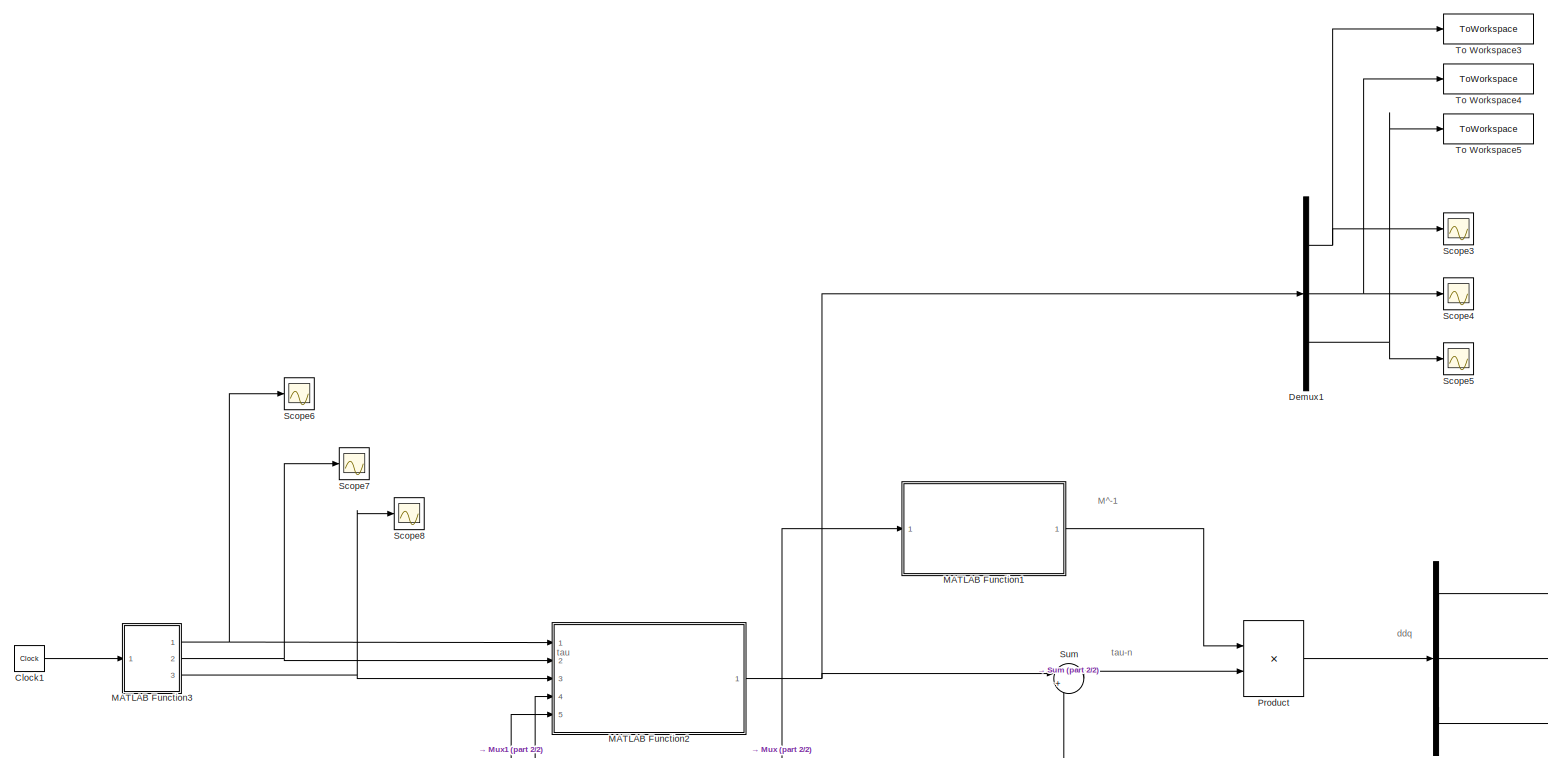
[diagram: root canvas - part 1/2, full width, middle band]
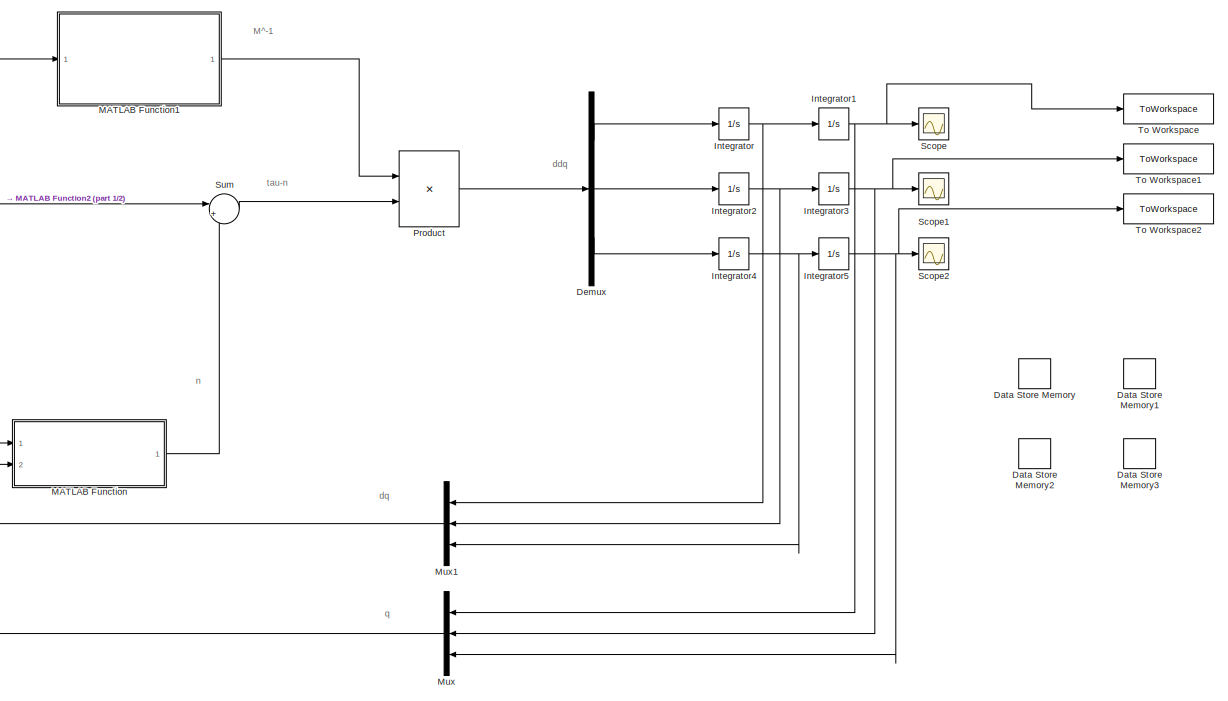
[diagram: root canvas - part 2/2, bottom right region]
MODEL slx_aa73523b1beb
KIND model
CONFIG AbsTol = auto
CONFIG EnableMultiTasking = off
CONFIG FixedStep = Ts
CONFIG MaxStep = auto
CONFIG MinStep = auto
CONFIG RelTol = 1e-3
CONFIG SampleTimeConstraint = Unconstrained
CONFIG SolverName = ode4
CONFIG StartTime = 0.0
CONFIG StopTime = T
BLOCK [Clock] Clock1
BLOCK [DataStoreMemory] Data Store Memory
  DataStoreName = g0
  ReadBeforeWriteMsg = warning
  ShowAdditionalParam = off
  WriteAfterReadMsg = warning
  WriteAfterWriteMsg = warning
BLOCK [DataStoreMemory] Data Store Memory1
  DataStoreName = k
  ReadBeforeWriteMsg = warning
  ShowAdditionalParam = off
  WriteAfterReadMsg = warning
  WriteAfterWriteMsg = warning
BLOCK [DataStoreMemory] Data Store Memory2
  DataStoreName = Kd
  ReadBeforeWriteMsg = warning
  ShowAdditionalParam = off
  WriteAfterReadMsg = warning
  WriteAfterWriteMsg = warning
BLOCK [DataStoreMemory] Data Store Memory3
  DataStoreName = Kp
  ReadBeforeWriteMsg = warning
  ShowAdditionalParam = off
  WriteAfterReadMsg = warning
  WriteAfterWriteMsg = warning
BLOCK [Demux] Demux
  Outputs = 3
  Ports = [1, 3]
BLOCK [Demux] Demux1
  Outputs = 3
  Ports = [1, 3]
BLOCK [Integrator] Integrator
  InitialCondition = dq0_1
  Ports = [1, 1]
BLOCK [Integrator] Integrator1
  InitialCondition = q0_1
  Ports = [1, 1]
BLOCK [Integrator] Integrator2
  InitialCondition = dq0_2
  Ports = [1, 1]
BLOCK [Integrator] Integrator3
  InitialCondition = q0_2
  Ports = [1, 1]
BLOCK [Integrator] Integrator4
  InitialCondition = dq0_3
  Ports = [1, 1]
BLOCK [Integrator] Integrator5
  InitialCondition = q0_3
  Ports = [1, 1]
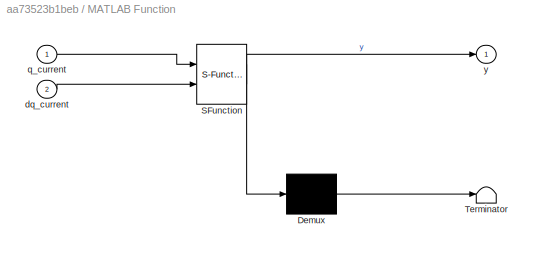
BLOCK [SubSystem] MATLAB Function
  ErrorFcn = Stateflow.Translate.translate
  PermitHierarchicalResolution = ExplicitOnly
  Ports = [2, 1]
  RequestExecContextInheritance = off
  SFBlockType = MATLAB Function
  TreatAsAtomicUnit = on
BLOCK [Demux] MATLAB Function/ Demux 
  Outputs = 1
  Ports = [1, 1]
BLOCK [S-Function] MATLAB Function/ SFunction 
  EnableBusSupport = on
  FunctionName = sf_sfun
  PortCounts = [2 2]
  Ports = [2, 2]
  SFcnIsStateOwnerBlock = off
  SFunctionDeploymentMode = off
  Tag = Stateflow S-Function 1
BLOCK [Terminator] MATLAB Function/ Terminator 
BLOCK [Inport] MATLAB Function/dq_current
  Port = 2
BLOCK [Inport] MATLAB Function/q_current
BLOCK [Outport] MATLAB Function/y
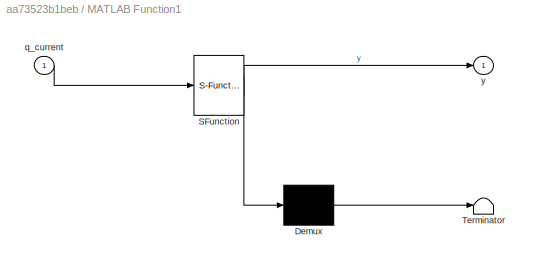
BLOCK [SubSystem] MATLAB Function1
  ErrorFcn = Stateflow.Translate.translate
  PermitHierarchicalResolution = ExplicitOnly
  Ports = [1, 1]
  RequestExecContextInheritance = off
  SFBlockType = MATLAB Function
  TreatAsAtomicUnit = on
BLOCK [Demux] MATLAB Function1/ Demux 
  Outputs = 1
  Ports = [1, 1]
BLOCK [S-Function] MATLAB Function1/ SFunction 
  EnableBusSupport = on
  FunctionName = sf_sfun
  PortCounts = [1 2]
  Ports = [1, 2]
  SFcnIsStateOwnerBlock = off
  SFunctionDeploymentMode = off
  Tag = Stateflow S-Function 3
BLOCK [Terminator] MATLAB Function1/ Terminator 
BLOCK [Inport] MATLAB Function1/q_current
BLOCK [Outport] MATLAB Function1/y
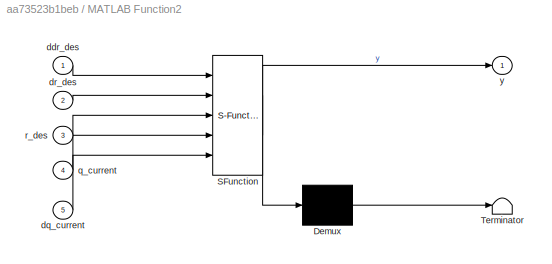
BLOCK [SubSystem] MATLAB Function2
  ErrorFcn = Stateflow.Translate.translate
  PermitHierarchicalResolution = ExplicitOnly
  Ports = [5, 1]
  RequestExecContextInheritance = off
  SFBlockType = MATLAB Function
  TreatAsAtomicUnit = on
BLOCK [Demux] MATLAB Function2/ Demux 
  Outputs = 1
  Ports = [1, 1]
BLOCK [S-Function] MATLAB Function2/ SFunction 
  EnableBusSupport = on
  FunctionName = sf_sfun
  PortCounts = [5 2]
  Ports = [5, 2]
  SFcnIsStateOwnerBlock = off
  SFunctionDeploymentMode = off
  Tag = Stateflow S-Function 4
BLOCK [Terminator] MATLAB Function2/ Terminator 
BLOCK [Inport] MATLAB Function2/ddr_des
BLOCK [Inport] MATLAB Function2/dq_current
  Port = 5
BLOCK [Inport] MATLAB Function2/dr_des
  Port = 2
BLOCK [Inport] MATLAB Function2/q_current
  Port = 4
BLOCK [Inport] MATLAB Function2/r_des
  Port = 3
BLOCK [Outport] MATLAB Function2/y
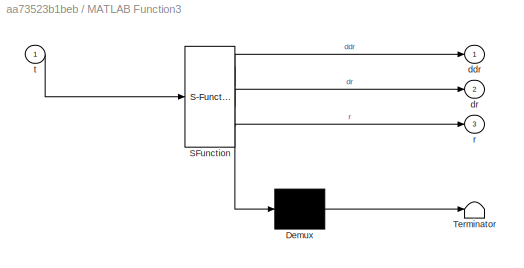
BLOCK [SubSystem] MATLAB Function3
  ErrorFcn = Stateflow.Translate.translate
  PermitHierarchicalResolution = ExplicitOnly
  Ports = [1, 3]
  RequestExecContextInheritance = off
  SFBlockType = MATLAB Function
  TreatAsAtomicUnit = on
BLOCK [Demux] MATLAB Function3/ Demux 
  Outputs = 1
  Ports = [1, 1]
BLOCK [S-Function] MATLAB Function3/ SFunction 
  EnableBusSupport = on
  FunctionName = sf_sfun
  PortCounts = [1 4]
  Ports = [1, 4]
  SFcnIsStateOwnerBlock = off
  SFunctionDeploymentMode = off
  Tag = Stateflow S-Function 2
BLOCK [Terminator] MATLAB Function3/ Terminator 
BLOCK [Outport] MATLAB Function3/ddr
BLOCK [Outport] MATLAB Function3/dr
  Port = 2
BLOCK [Outport] MATLAB Function3/r
  Port = 3
BLOCK [Inport] MATLAB Function3/t
BLOCK [Mux] Mux
  DisplayOption = bar
  Inputs = 3
  Ports = [3, 1]
BLOCK [Mux] Mux1
  DisplayOption = bar
  Inputs = 3
  Ports = [3, 1]
BLOCK [Product] Product
  Multiplication = Matrix(*)
  Ports = [2, 1]
BLOCK [Scope] Scope
  Floating = off
  NumInputPorts = 1
  Ports = [1]
  ScopeSpecificationString = Simulink.scopes.TimeScopeBlockCfg('CurrentConfiguration', extmgr.ConfigurationSet(extmgr.Configuration('Core','General UI',true),extmgr.Configuration('Core','Source UI',true),extmgr.Configuration('Sources','WiredSimulink',true),extmgr.Configuration('Visuals','Time Domain',true,'SerializedDisplays',{struct('MinYLimReal','-2.37453','MaxYLimReal','0.98775','YLabelReal','','MinYLimMag','0.00000','MaxY...<+1383ch>
BLOCK [Scope] Scope1
  Floating = off
  NumInputPorts = 1
  Ports = [1]
  ScopeSpecificationString = Simulink.scopes.TimeScopeBlockCfg('CurrentConfiguration', extmgr.ConfigurationSet(extmgr.Configuration('Core','General UI',true),extmgr.Configuration('Core','Source UI',true),extmgr.Configuration('Sources','WiredSimulink',true,'DataLoggingVariableName','ScopeData1'),extmgr.Configuration('Visuals','Time Domain',true,'SerializedDisplays',{struct('MinYLimReal','0.00699','MaxYLimReal','2.83128','YLabe...<+1401ch>
BLOCK [Scope] Scope2
  Floating = off
  NumInputPorts = 1
  Ports = [1]
  ScopeSpecificationString = Simulink.scopes.TimeScopeBlockCfg('CurrentConfiguration', extmgr.ConfigurationSet(extmgr.Configuration('Core','General UI',true),extmgr.Configuration('Core','Source UI',true),extmgr.Configuration('Sources','WiredSimulink',true,'DataLoggingVariableName','ScopeData2'),extmgr.Configuration('Visuals','Time Domain',true,'SerializedDisplays',{struct('MinYLimReal','0.4236','MaxYLimReal','0.6236','YLabelR...<+1360ch>
BLOCK [Scope] Scope3
  Floating = off
  NumInputPorts = 1
  Ports = [1]
  ScopeSpecificationString = Simulink.scopes.TimeScopeBlockCfg('CurrentConfiguration', extmgr.ConfigurationSet(extmgr.Configuration('Core','General UI',true),extmgr.Configuration('Core','Source UI',true),extmgr.Configuration('Sources','WiredSimulink',true,'DataLoggingVariableName','ScopeData1'),extmgr.Configuration('Visuals','Time Domain',true,'SerializedDisplays',{struct('MinYLimReal','-28530760574863017621786026544167131660...<+2191ch>
BLOCK [Scope] Scope4
  Floating = off
  NumInputPorts = 1
  Ports = [1]
  ScopeSpecificationString = Simulink.scopes.TimeScopeBlockCfg('CurrentConfiguration', extmgr.ConfigurationSet(extmgr.Configuration('Core','General UI',true),extmgr.Configuration('Core','Source UI',true),extmgr.Configuration('Sources','WiredSimulink',true,'DataLoggingVariableName','ScopeData2'),extmgr.Configuration('Visuals','Time Domain',true,'SerializedDisplays',{struct('MinYLimReal','-5522.08815','MaxYLimReal','2073.23301'...<+1419ch>
BLOCK [Scope] Scope5
  Floating = off
  NumInputPorts = 1
  Ports = [1]
  ScopeSpecificationString = Simulink.scopes.TimeScopeBlockCfg('CurrentConfiguration', extmgr.ConfigurationSet(extmgr.Configuration('Core','General UI',true),extmgr.Configuration('Core','Source UI',true),extmgr.Configuration('Sources','WiredSimulink',true,'DataLoggingVariableName','ScopeData3'),extmgr.Configuration('Visuals','Time Domain',true,'SerializedDisplays',{struct('MinYLimReal','-42764417739397075978404447610402734436...<+2930ch>
BLOCK [Scope] Scope6
  Floating = off
  NumInputPorts = 1
  Ports = [1]
  ScopeSpecificationString = Simulink.scopes.TimeScopeBlockCfg('CurrentConfiguration', extmgr.ConfigurationSet(extmgr.Configuration('Core','General UI',true),extmgr.Configuration('Core','Source UI',true),extmgr.Configuration('Sources','WiredSimulink',true,'DataLoggingVariableName','ScopeData2'),extmgr.Configuration('Visuals','Time Domain',true,'SerializedDisplays',{struct('MinYLimReal','-5.92176','MaxYLimReal','5.92176','YLab...<+1442ch>
BLOCK [Scope] Scope7
  Floating = off
  NumInputPorts = 1
  Ports = [1]
  ScopeSpecificationString = Simulink.scopes.TimeScopeBlockCfg('CurrentConfiguration', extmgr.ConfigurationSet(extmgr.Configuration('Core','General UI',true),extmgr.Configuration('Core','Source UI',true),extmgr.Configuration('Sources','WiredSimulink',true,'DataLoggingVariableName','ScopeData3'),extmgr.Configuration('Visuals','Time Domain',true,'SerializedDisplays',{struct('MinYLimReal','-0.84105','MaxYLimReal','0.47145','YLab...<+1440ch>
BLOCK [Scope] Scope8
  Floating = off
  NumInputPorts = 1
  Ports = [1]
  ScopeSpecificationString = Simulink.scopes.TimeScopeBlockCfg('CurrentConfiguration', extmgr.ConfigurationSet(extmgr.Configuration('Core','General UI',true),extmgr.Configuration('Core','Source UI',true),extmgr.Configuration('Sources','WiredSimulink',true,'DataLoggingVariableName','ScopeData4'),extmgr.Configuration('Visuals','Time Domain',true,'SerializedDisplays',{struct('MinYLimReal','0.3125','MaxYLimReal','2.1875','YLabelR...<+1426ch>
BLOCK [Sum] Sum
  Inputs = |+-
  Ports = [2, 1]
BLOCK [ToWorkspace] To Workspace
  FixptAsFi = on
  MaxDataPoints = inf
  Ports = [1]
  SampleTime = -1
  SaveFormat = Structure With Time
  VariableName = q1
BLOCK [ToWorkspace] To Workspace1
  FixptAsFi = on
  MaxDataPoints = inf
  Ports = [1]
  SampleTime = -1
  SaveFormat = Structure With Time
  VariableName = q2
BLOCK [ToWorkspace] To Workspace2
  FixptAsFi = on
  MaxDataPoints = inf
  Ports = [1]
  SampleTime = -1
  SaveFormat = Structure With Time
  VariableName = q3
BLOCK [ToWorkspace] To Workspace3
  FixptAsFi = on
  MaxDataPoints = inf
  Ports = [1]
  SampleTime = -1
  SaveFormat = Structure With Time
  VariableName = tau1
BLOCK [ToWorkspace] To Workspace4
  FixptAsFi = on
  MaxDataPoints = inf
  Ports = [1]
  SampleTime = -1
  SaveFormat = Structure With Time
  VariableName = tau2
BLOCK [ToWorkspace] To Workspace5
  FixptAsFi = on
  MaxDataPoints = inf
  Ports = [1]
  SampleTime = -1
  SaveFormat = Structure With Time
  VariableName = tau3
ANNOTATION (root): M^-1
ANNOTATION (root): ddq
ANNOTATION (root): dq
ANNOTATION (root): n
ANNOTATION (root): q
ANNOTATION (root): tau
ANNOTATION (root): tau-n
LINE Clock1:1 -> MATLAB Function3:1
NET Demux1:1 -> Scope3:1, To Workspace3:1
NET Demux1:2 -> Scope4:1, To Workspace4:1
NET Demux1:3 -> Scope5:1, To Workspace5:1
LINE Demux:1 -> Integrator:1
LINE Demux:2 -> Integrator2:1
LINE Demux:3 -> Integrator4:1
NET Integrator1:1 -> Mux:1, Scope:1, To Workspace:1
NET Integrator2:1 -> Integrator3:1, Mux1:2
NET Integrator3:1 -> Mux:2, Scope1:1, To Workspace1:1
NET Integrator4:1 -> Integrator5:1, Mux1:3
NET Integrator5:1 -> Mux:3, Scope2:1, To Workspace2:1
NET Integrator:1 -> Integrator1:1, Mux1:1
LINE MATLAB Function1:1 -> Product:1
NET MATLAB Function2:1 -> Demux1:1, Sum:1
NET MATLAB Function3:1 -> MATLAB Function2:1, Scope6:1
NET MATLAB Function3:2 -> MATLAB Function2:2, Scope7:1
NET MATLAB Function3:3 -> MATLAB Function2:3, Scope8:1
LINE MATLAB Function:1 -> Sum:2
NET Mux1:1 -> MATLAB Function2:5, MATLAB Function:2
NET Mux:1 -> MATLAB Function1:1, MATLAB Function2:4, MATLAB Function:1
LINE Product:1 -> Demux:1
LINE Sum:1 -> Product:2
note: NET lines group one-source signal fan-out (src -> all destinations, sorted); 1:1 wires keep LINE
CHART MATLAB Function states=1 transitions=1
  STATE_LABEL 'eML_blk_kernel()'
  STATE_LABEL 'SCRIPT:\nfunction y = evaluate_n(q_current, dq_current)\n\nq1 = q_current(1);\nq2 = q_current(2);\nq3 = q_current(3);\ndq1 = dq_current(1);\ndq2 = dq_current(2);\ndq3 = dq_current(3);\n\n% global g0;\nL = 1;\ndc1 = 1/2 * L;\ndc2 = 1/2 * L;\ndc3 = 1/2 * L;\nm1 = 10;\nm2 = 10;\nm3 = 10;\nI1 = 1/12 * m1 * L^2;\nI2 = 1/12 * m2 * L^2;\nI3 = 1/12 * m3 * L^2;\ng0=0;\n\nn=zeros(3,1);\nn(1)=g0*m3*(L*cos(q1 + q2) + L*cos(q1) + dc3...<+762ch>'
CHART MATLAB Function3 states=1 transitions=1
  STATE_LABEL 'eML_blk_kernel()'
  STATE_LABEL 'SCRIPT:\nfunction [ddr, dr, r] = evaluate_trajectory(t)\n\nT=5;\n\n%% LINEAR TRAJECTORY\n% \n% tau_t = t/T;\n% s = -2*tau_t^3 + 3*tau_t^2;\n% ds = (6*t)/T^2 - (6*t^2)/T^3;\n% dds = 6/T^2 - (12*t)/T^3;\n% start = [1.3660; 2.3660];\n% finish = [2.5; 0];\n% r = start + s*(finish-start);\n% dr = (finish-start)*ds;\n% ddr = (finish-start)*dds;\n\n%% CIRCULAR TRAJECTORY\n\nh = 0;\nif t > T\n    h = 1\nend\ntau_t = t/T - h;\nce...<+381ch>'
CHART MATLAB Function1 states=1 transitions=1
  STATE_LABEL 'eML_blk_kernel()'
  STATE_LABEL 'SCRIPT:\nfunction y = evaluate_inv_M(q_current)\n\nq1 = q_current(1);\nq2 = q_current(2);\nq3 = q_current(3);\n\nL = 1;\ndc1 = 1/2 * L;\ndc2 = 1/2 * L;\ndc3 = 1/2 * L;\nm1 = 10;\nm2 = 10;\nm3 = 10;\nI1 = 1/12 * m1 * L^2;\nI2 = 1/12 * m2 * L^2;\nI3 = 1/12 * m3 * L^2;\n\nM=zeros(3,3);\nM(1,1)=I1 + I2 + I3 + L^2*m2 + 2*L^2*m3 + 2*cos(q2)*(m3*L^2 + dc2*m2*L) + dc1^2*m1 + dc2^2*m2 + dc3^2*m3 + 2*L*dc3*m3*cos(q2 + q3) + 2...<+409ch>'
CHART MATLAB Function2 states=1 transitions=1
  STATE_LABEL 'eML_blk_kernel()'
  STATE_LABEL 'SCRIPT:\nfunction y = compute_tau(ddr_des, dr_des, r_des, q_current, dq_current)\n\n\ng0 = 0;\nKp = diag([400,400]);\nKd = diag([40,40]);\nk = 2;\n\n\nq1 = q_current(1);\nq2 = q_current(2);\nq3 = q_current(3);\n\ndq1 = dq_current(1);\ndq2 = dq_current(2);\ndq3 = dq_current(3);\ndq=[dq1;dq2;dq3];\n\nM=zeros(3,3);\nM(1,1)=10*cos(q2 + q3) + 30*cos(q2) + 10*cos(q3) + 40;\nM(1,2)=5*cos(q2 + q3) + 15*cos(q2) + 10*cos(q3) + ...<+1706ch>'
CHART  states=0 transitions=0
CHART  states=0 transitions=0
CHART  states=0 transitions=0
CHART  states=0 transitions=0
